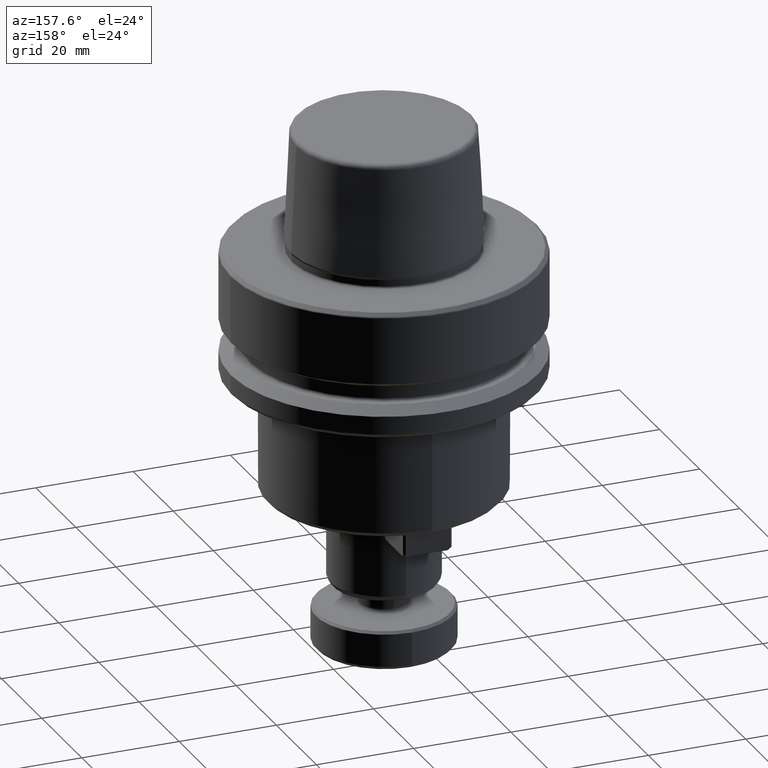
[diagram: clean part render]
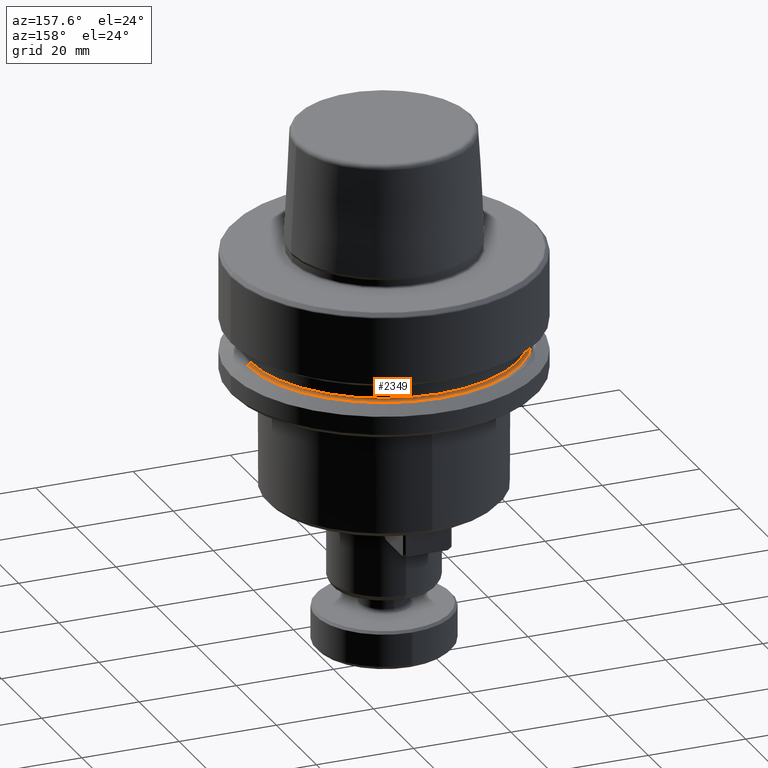
[diagram: same view with one face highlighted and labeled with its STEP entity id]
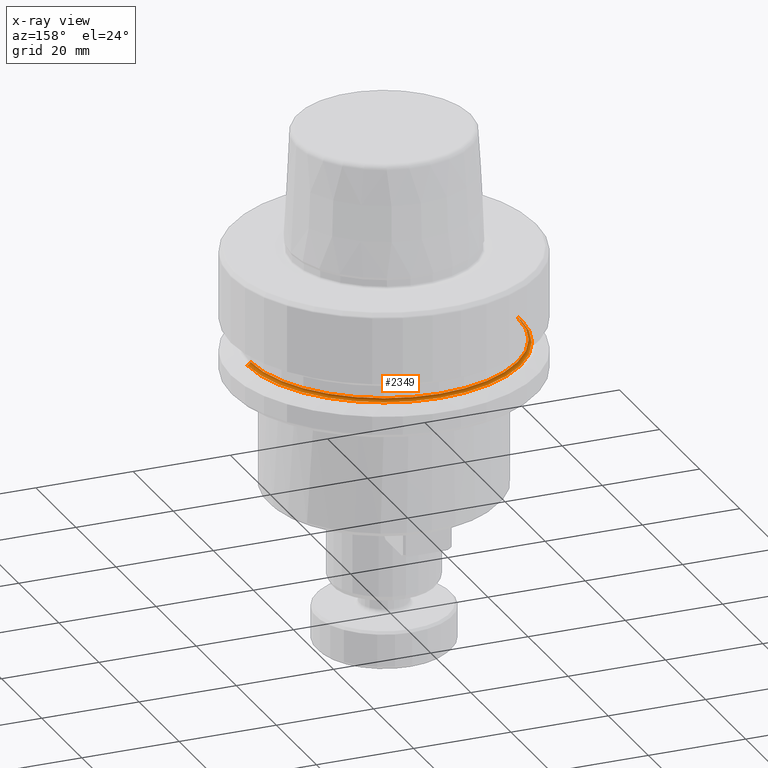
[diagram: x-ray of the same camera — body ghosted, the highlighted face saturated]
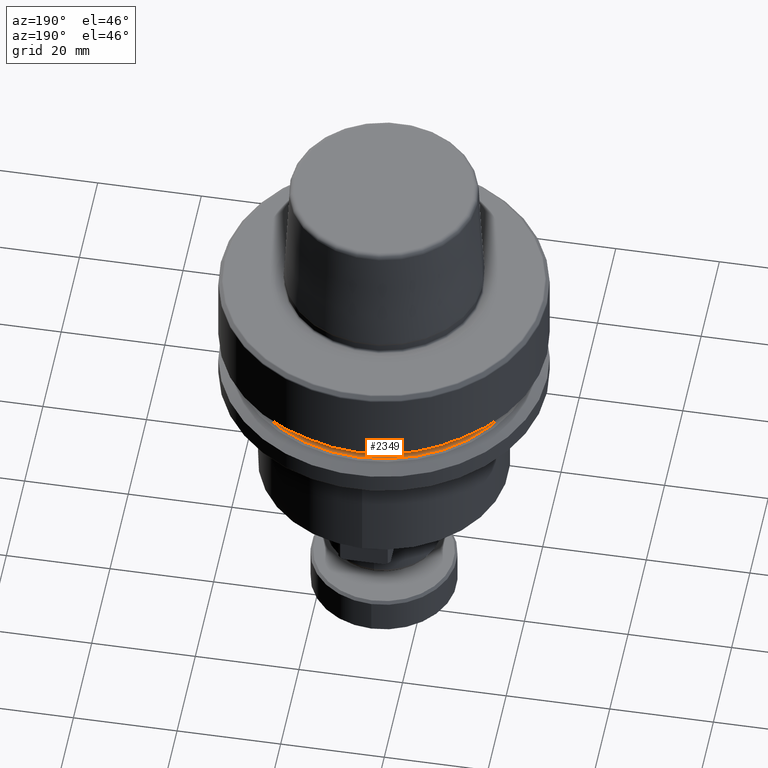
[diagram: same view with one face highlighted and labeled with its STEP entity id]
A machine part, auxiliary view. The second image highlights one B-rep face of the part: STEP entity #2349.
The next image is the same camera in x-ray: the body ghosted, the highlighted face saturated — about 4% of this face is hidden behind the body in this view.
A second angle (auxiliary view) of the same face is appended — the face is thin or edge-on in the first view.
In plain terms, the highlighted toroidal blend (fillet) surface has major radius 28.1 mm and minor (blend) radius 0.6 mm.
Its self-contained STEP definition (entity closure, byte-faithful):
#70 = DIRECTION ( 'NONE',  ( -0.0000000000000000000, -0.0000000000000000000, 1.000000000000000000 ) ) ;
#110 = AXIS2_PLACEMENT_3D ( 'NONE', #1423, #70, #1644 ) ;
#123 = DIRECTION ( 'NONE',  ( -1.000000000000000000, 0.0000000000000000000, 0.0000000000000000000 ) ) ;
#198 = TOROIDAL_SURFACE ( 'NONE', #2695, 28.10000000000000100, 0.5999999999999998700 ) ;
#242 = EDGE_CURVE ( 'NONE', #997, #2291, #535, .T. ) ;
#247 = VERTEX_POINT ( 'NONE', #2184 ) ;
#307 = AXIS2_PLACEMENT_3D ( 'NONE', #1109, #1909, #1253 ) ;
#403 = ORIENTED_EDGE ( 'NONE', *, *, #2207, .F. ) ;
#521 = EDGE_CURVE ( 'NONE', #2291, #247, #542, .T. ) ;
#535 = CIRCLE ( 'NONE', #307, 0.6000000000000033100 ) ;
#542 = CIRCLE ( 'NONE', #110, 28.10000000000000500 ) ;
#712 = AXIS2_PLACEMENT_3D ( 'NONE', #755, #2326, #975 ) ;
#755 = CARTESIAN_POINT ( 'NONE',  ( -12.14432970522239700, -4.286756626697751900, 44.02075645340546800 ) ) ;
#808 = DIRECTION ( 'NONE',  ( 1.000000000000000000, 0.0000000000000000000, 0.0000000000000000000 ) ) ;
#975 = DIRECTION ( 'NONE',  ( 1.000000000000000000, 0.0000000000000000000, 0.0000000000000000000 ) ) ;
#997 = VERTEX_POINT ( 'NONE', #2493 ) ;
#1109 = CARTESIAN_POINT ( 'NONE',  ( 15.95567029477760300, -4.286756626697751900, 44.02075645340546100 ) ) ;
#1132 = ORIENTED_EDGE ( 'NONE', *, *, #521, .T. ) ;
#1229 = VERTEX_POINT ( 'NONE', #2342 ) ;
#1253 = DIRECTION ( 'NONE',  ( 0.0000000000000000000, 0.0000000000000000000, -1.000000000000000000 ) ) ;
#1423 = CARTESIAN_POINT ( 'NONE',  ( -12.14432970522239700, -4.286756626697751900, 43.42075645340546700 ) ) ;
#1480 = DIRECTION ( 'NONE',  ( 1.224646799147353200E-016, 1.000000000000000000, 0.0000000000000000000 ) ) ;
#1493 = CARTESIAN_POINT ( 'NONE',  ( -12.14432970522239700, -4.286756626697751900, 44.02075645340546100 ) ) ;
#1644 = DIRECTION ( 'NONE',  ( 1.000000000000000000, 0.0000000000000000000, 0.0000000000000000000 ) ) ;
#1714 = DIRECTION ( 'NONE',  ( -0.0000000000000000000, -0.0000000000000000000, 1.000000000000000000 ) ) ;
#1780 = EDGE_LOOP ( 'NONE', ( #2470, #403, #2784, #1132 ) ) ;
#1909 = DIRECTION ( 'NONE',  ( 0.0000000000000000000, -1.000000000000000000, 0.0000000000000000000 ) ) ;
#1945 = AXIS2_PLACEMENT_3D ( 'NONE', #2815, #1480, #123 ) ;
#2056 = CIRCLE ( 'NONE', #1945, 0.5999999999999963100 ) ;
#2114 = CARTESIAN_POINT ( 'NONE',  ( 15.95567029477760300, -4.286756626697751900, 43.42075645340546000 ) ) ;
#2184 = CARTESIAN_POINT ( 'NONE',  ( -40.24432970522240500, -4.286756626697748400, 43.42075645340546000 ) ) ;
#2207 = EDGE_CURVE ( 'NONE', #997, #1229, #2796, .T. ) ;
#2291 = VERTEX_POINT ( 'NONE', #2114 ) ;
#2307 = EDGE_CURVE ( 'NONE', #1229, #247, #2056, .T. ) ;
#2326 = DIRECTION ( 'NONE',  ( -0.0000000000000000000, -0.0000000000000000000, 1.000000000000000000 ) ) ;
#2342 = CARTESIAN_POINT ( 'NONE',  ( -39.64432970522239700, -4.286756626697748400, 44.02075645340546800 ) ) ;
#2349 = ADVANCED_FACE ( 'NONE', ( #2514 ), #198, .F. ) ;
#2470 = ORIENTED_EDGE ( 'NONE', *, *, #2307, .F. ) ;
#2493 = CARTESIAN_POINT ( 'NONE',  ( 15.35567029477760300, -4.286756626697751900, 44.02075645340546800 ) ) ;
#2514 = FACE_OUTER_BOUND ( 'NONE', #1780, .T. ) ;
#2695 = AXIS2_PLACEMENT_3D ( 'NONE', #1493, #1714, #808 ) ;
#2784 = ORIENTED_EDGE ( 'NONE', *, *, #242, .T. ) ;
#2796 = CIRCLE ( 'NONE', #712, 27.50000000000000000 ) ;
#2815 = CARTESIAN_POINT ( 'NONE',  ( -40.24432970522239800, -4.286756626697748400, 44.02075645340546100 ) ) ;